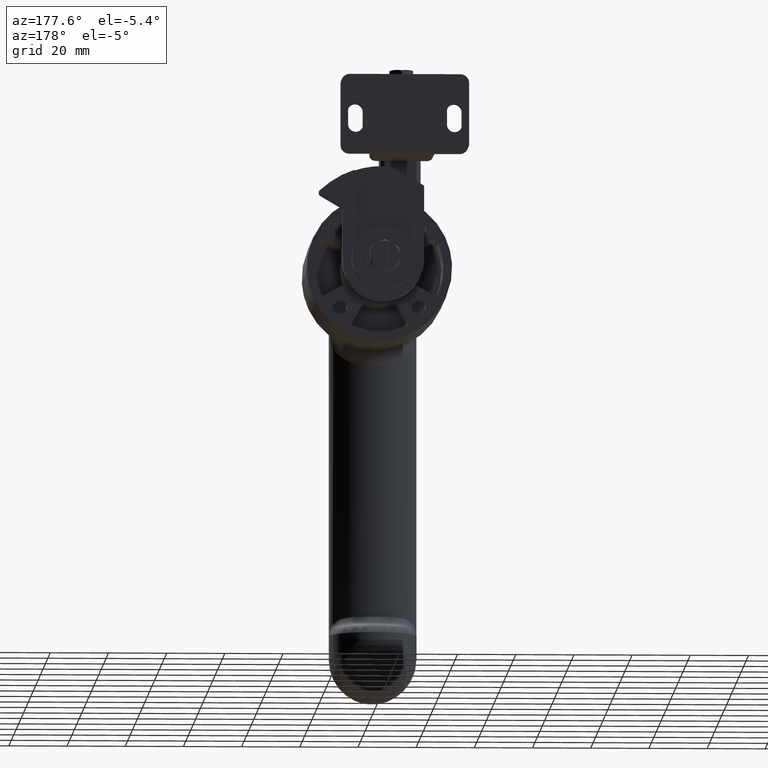
[diagram: clean part render]
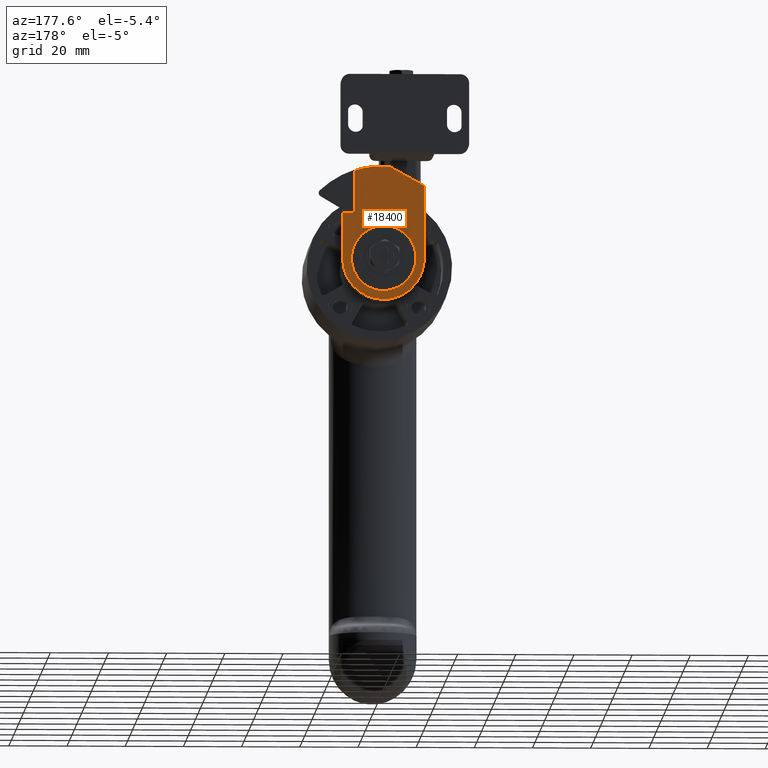
[diagram: same view with one face highlighted and labeled with its STEP entity id]
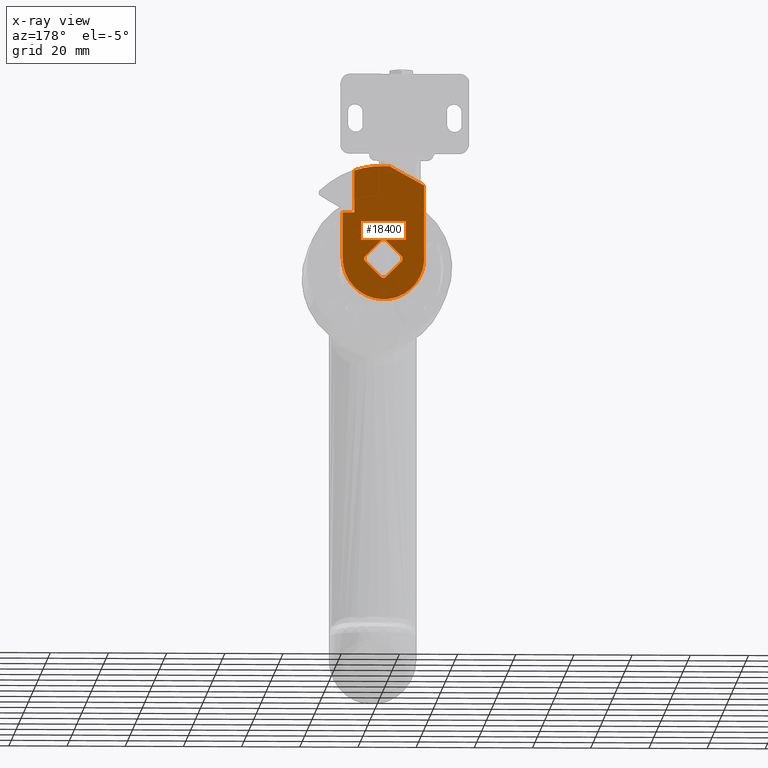
[diagram: x-ray of the same camera — body ghosted, the highlighted face saturated]
A machine part, auxiliary view. The second image highlights one B-rep face of the part: STEP entity #18400.
The next image is the same camera in x-ray: the body ghosted, the highlighted face saturated — about 0% of this face is hidden behind the body in this view.
In plain terms, the highlighted face is a freeform B-spline surface patch.
Its self-contained STEP definition (entity closure, byte-faithful):
#17334=CARTESIAN_POINT('',(-13.999999999982441,9.000000000000119,25.300000000086751));
#17335=VERTEX_POINT('',#17334);
#17341=CARTESIAN_POINT('',(-14.0,9.000000000000119,-2.598191E-011));
#17342=VERTEX_POINT('',#17341);
#17343=CARTESIAN_POINT('',(-13.999999999982441,9.000000000000119,25.300000000086751));
#17344=CARTESIAN_POINT('',(-14.0,9.000000000000119,-2.598191E-011));
#17345=QUASI_UNIFORM_CURVE('',1,(#17343,#17344),.UNSPECIFIED.,.F.,.U.);
#17346=EDGE_CURVE('',#17335,#17342,#17345,.T.);
#17368=CARTESIAN_POINT('',(-2.000000000209915,9.000000000000119,31.937438845303401));
#17369=VERTEX_POINT('',#17368);
#17375=CARTESIAN_POINT('',(-2.000000000209915,9.000000000000119,31.937438845303401));
#17376=CARTESIAN_POINT('',(-13.999999999982441,9.000000000000119,25.300000000086751));
#17377=QUASI_UNIFORM_CURVE('',1,(#17375,#17376),.UNSPECIFIED.,.F.,.U.);
#17378=EDGE_CURVE('',#17369,#17335,#17377,.T.);
#17480=CARTESIAN_POINT('',(10.000000000021419,9.000000000000119,30.397368307108199));
#17481=VERTEX_POINT('',#17480);
#17487=CARTESIAN_POINT('',(-2.000000000209921,9.000000000000119,31.937438845303380));
#17488=CARTESIAN_POINT('',(4.148238578822799,9.000000000000119,32.322456479901653));
#17489=CARTESIAN_POINT('',(10.000000000021389,9.000000000000119,30.397368307108170));
#17497=(BOUNDED_CURVE()B_SPLINE_CURVE(2,(#17487,#17488,#17489),.UNSPECIFIED.,.F.,.U.)CURVE()GEOMETRIC_REPRESENTATION_ITEM()QUASI_UNIFORM_CURVE()RATIONAL_B_SPLINE_CURVE((1.0,0.981969802514193,1.0))REPRESENTATION_ITEM(''));
#17498=EDGE_CURVE('',#17369,#17481,#17497,.T.);
#17807=CARTESIAN_POINT('',(6.575677091096340,9.000000000000119,0.566101398693485));
#17808=VERTEX_POINT('',#17807);
#17814=CARTESIAN_POINT('',(6.575677091094510,9.000000000000119,-0.566101398766254));
#17815=VERTEX_POINT('',#17814);
#17816=CARTESIAN_POINT('',(6.575677091096337,9.000000000000119,0.566101398693484));
#17817=CARTESIAN_POINT('',(6.624412877418935,9.000000000000119,-3.646480E-011));
#17818=CARTESIAN_POINT('',(6.575677091094544,9.000000000000119,-0.566101398766261));
#17826=(BOUNDED_CURVE()B_SPLINE_CURVE(2,(#17816,#17817,#17818),.UNSPECIFIED.,.F.,.U.)CURVE()GEOMETRIC_REPRESENTATION_ITEM()QUASI_UNIFORM_CURVE()RATIONAL_B_SPLINE_CURVE((1.0,0.996314710772021,1.0))REPRESENTATION_ITEM(''));
#17827=EDGE_CURVE('',#17808,#17815,#17826,.T.);
#17850=CARTESIAN_POINT('',(0.566101399067535,9.000000000000119,-6.575677091092260));
#17851=VERTEX_POINT('',#17850);
#17852=CARTESIAN_POINT('',(0.566101399067535,9.000000000000119,-6.575677091092260));
#17853=CARTESIAN_POINT('',(6.575677091094510,9.000000000000119,-0.566101398766254));
#17854=QUASI_UNIFORM_CURVE('',1,(#17852,#17853),.UNSPECIFIED.,.F.,.U.);
#17855=EDGE_CURVE('',#17851,#17815,#17854,.T.);
#17895=CARTESIAN_POINT('',(-0.566101398740173,9.000000000000119,-6.575677091120500));
#17896=VERTEX_POINT('',#17895);
#17897=CARTESIAN_POINT('',(0.566101399067535,9.000000000000119,-6.575677091092261));
#17898=CARTESIAN_POINT('',(1.648992E-010,9.000000000000119,-6.624412877459905));
#17899=CARTESIAN_POINT('',(-0.566101398740165,9.000000000000119,-6.575677091120427));
#17907=(BOUNDED_CURVE()B_SPLINE_CURVE(2,(#17897,#17898,#17899),.UNSPECIFIED.,.F.,.U.)CURVE()GEOMETRIC_REPRESENTATION_ITEM()QUASI_UNIFORM_CURVE()RATIONAL_B_SPLINE_CURVE((1.0,0.996314710769752,1.0))REPRESENTATION_ITEM(''));
#17908=EDGE_CURVE('',#17851,#17896,#17907,.T.);
#17931=CARTESIAN_POINT('',(-6.575677091096139,9.000000000000119,-0.566101398745434));
#17932=VERTEX_POINT('',#17931);
#17933=CARTESIAN_POINT('',(-6.575677091096139,9.000000000000119,-0.566101398745434));
#17934=CARTESIAN_POINT('',(-0.566101398740173,9.000000000000119,-6.575677091120500));
#17935=QUASI_UNIFORM_CURVE('',1,(#17933,#17934),.UNSPECIFIED.,.F.,.U.);
#17936=EDGE_CURVE('',#17932,#17896,#17935,.T.);
#17976=CARTESIAN_POINT('',(-6.575677091064520,9.000000000000119,0.566101399061946));
#17977=VERTEX_POINT('',#17976);
#17978=CARTESIAN_POINT('',(-6.575677091096138,9.000000000000119,-0.566101398745436));
#17979=CARTESIAN_POINT('',(-6.624412877433810,9.000000000000119,1.596133E-010));
#17980=CARTESIAN_POINT('',(-6.575677091064417,9.000000000000119,0.566101399061934));
#17988=(BOUNDED_CURVE()B_SPLINE_CURVE(2,(#17978,#17979,#17980),.UNSPECIFIED.,.F.,.U.)CURVE()GEOMETRIC_REPRESENTATION_ITEM()QUASI_UNIFORM_CURVE()RATIONAL_B_SPLINE_CURVE((1.0,0.996314710769754,1.0))REPRESENTATION_ITEM(''));
#17989=EDGE_CURVE('',#17932,#17977,#17988,.T.);
#18012=CARTESIAN_POINT('',(-0.566101399067335,9.000000000000119,6.575677091040300));
#18013=VERTEX_POINT('',#18012);
#18014=CARTESIAN_POINT('',(-0.566101399067335,9.000000000000119,6.575677091040300));
#18015=CARTESIAN_POINT('',(-6.575677091064520,9.000000000000119,0.566101399061946));
#18016=QUASI_UNIFORM_CURVE('',1,(#18014,#18015),.UNSPECIFIED.,.F.,.U.);
#18017=EDGE_CURVE('',#18013,#17977,#18016,.T.);
#18057=CARTESIAN_POINT('',(0.566101398740303,9.000000000000119,6.575677091068470));
#18058=VERTEX_POINT('',#18057);
#18059=CARTESIAN_POINT('',(-0.566101399067336,9.000000000000119,6.575677091040299));
#18060=CARTESIAN_POINT('',(-1.647282E-010,9.000000000000119,6.624412877407941));
#18061=CARTESIAN_POINT('',(0.566101398740302,9.000000000000119,6.575677091068471));
#18069=(BOUNDED_CURVE()B_SPLINE_CURVE(2,(#18059,#18060,#18061),.UNSPECIFIED.,.F.,.U.)CURVE()GEOMETRIC_REPRESENTATION_ITEM()QUASI_UNIFORM_CURVE()RATIONAL_B_SPLINE_CURVE((1.0,0.996314710769752,1.0))REPRESENTATION_ITEM(''));
#18070=EDGE_CURVE('',#18013,#18058,#18069,.T.);
#18091=CARTESIAN_POINT('',(6.575677091096340,9.000000000000119,0.566101398693485));
#18092=CARTESIAN_POINT('',(0.566101398740303,9.000000000000119,6.575677091068470));
#18093=QUASI_UNIFORM_CURVE('',1,(#18091,#18092),.UNSPECIFIED.,.F.,.U.);
#18094=EDGE_CURVE('',#17808,#18058,#18093,.T.);
#18114=CARTESIAN_POINT('',(14.000000000046020,9.000000000000119,15.896964971914050));
#18115=VERTEX_POINT('',#18114);
#18131=CARTESIAN_POINT('',(9.999999999979409,9.000000000000108,15.896964971914150));
#18132=VERTEX_POINT('',#18131);
#18133=CARTESIAN_POINT('',(9.999999999979409,9.000000000000108,15.896964971914150));
#18134=CARTESIAN_POINT('',(14.000000000046020,9.000000000000119,15.896964971914050));
#18135=QUASI_UNIFORM_CURVE('',1,(#18133,#18134),.UNSPECIFIED.,.F.,.U.);
#18136=EDGE_CURVE('',#18132,#18115,#18135,.T.);
#18282=CARTESIAN_POINT('',(9.999999999979409,9.000000000000108,15.896964971914150));
#18283=CARTESIAN_POINT('',(10.000000000021419,9.000000000000119,30.397368307108199));
#18284=QUASI_UNIFORM_CURVE('',1,(#18282,#18283),.UNSPECIFIED.,.F.,.U.);
#18285=EDGE_CURVE('',#18132,#17481,#18284,.T.);
#18348=CARTESIAN_POINT('',(15.398599945778880,9.000000000000108,34.297687702996207));
#18349=CARTESIAN_POINT('',(-15.398600696751391,9.000000000000108,34.297687702996207));
#18350=CARTESIAN_POINT('',(15.398599945778880,9.000000000000108,-16.297700563901628));
#18351=CARTESIAN_POINT('',(-15.398600696751391,9.000000000000108,-16.297700563901628));
#18352=B_SPLINE_SURFACE_WITH_KNOTS('',1,1,((#18348,#18350),(#18349,#18351)),.UNSPECIFIED.,.F.,.F.,.U.,(2,2),(2,2),(0.0,30.797200642530271),(0.0,50.595388266897842),.UNSPECIFIED.);
#18353=ORIENTED_EDGE('',*,*,#18285,.F.);
#18354=ORIENTED_EDGE('',*,*,#18136,.T.);
#18355=CARTESIAN_POINT('',(14.0,9.000000000000119,-2.620831E-011));
#18356=VERTEX_POINT('',#18355);
#18357=CARTESIAN_POINT('',(14.0,9.000000000000119,-2.620831E-011));
#18358=CARTESIAN_POINT('',(14.000000000046020,9.000000000000119,15.896964971914050));
#18359=QUASI_UNIFORM_CURVE('',1,(#18357,#18358),.UNSPECIFIED.,.F.,.U.);
#18360=EDGE_CURVE('',#18356,#18115,#18359,.T.);
#18361=ORIENTED_EDGE('',*,*,#18360,.F.);
#18362=CARTESIAN_POINT('',(14.0,9.000000000000119,-2.620831E-011));
#18363=CARTESIAN_POINT('',(14.000064033502110,9.000000000000114,-0.916269550255968));
#18364=CARTESIAN_POINT('',(13.802698380195840,9.000000000000132,-2.920685666355284));
#18365=CARTESIAN_POINT('',(13.003941899204920,9.000000000000107,-5.389234486429997));
#18366=CARTESIAN_POINT('',(11.759683129912270,9.000000000000137,-7.716941692546149));
#18367=CARTESIAN_POINT('',(10.107959586016880,9.000000000000151,-9.860806698645497));
#18368=CARTESIAN_POINT('',(8.056169867361541,9.000000000000094,-11.544629376726551));
#18369=CARTESIAN_POINT('',(5.852605804295361,9.000000000000030,-12.774889192438151));
#18370=CARTESIAN_POINT('',(3.916412403340157,9.000000000000174,-13.508169619364930));
#18371=CARTESIAN_POINT('',(1.381999232735699,9.000000000000112,-14.012381435470910));
#18372=CARTESIAN_POINT('',(-1.095306125246458,8.999999999999989,-14.042768158077330));
#18373=CARTESIAN_POINT('',(-3.752855053648884,9.000000000000229,-13.564770156194729));
#18374=CARTESIAN_POINT('',(-6.234137531243707,8.999999999999890,-12.642608756187730));
#18375=CARTESIAN_POINT('',(-8.431726058411456,9.000000000000433,-11.269724800309421));
#18376=CARTESIAN_POINT('',(-10.091065873974410,8.999999999999883,-9.765632642506301));
#18377=CARTESIAN_POINT('',(-11.347040253374781,9.000000000000306,-8.272909559575382));
#18378=CARTESIAN_POINT('',(-12.606891109701181,8.999999999999922,-6.283898415321391));
#18379=CARTESIAN_POINT('',(-13.703022455728000,9.000000000000402,-3.493193404930867));
#18380=CARTESIAN_POINT('',(-14.000317323477489,8.999999999999831,-1.202643860829530));
#18381=CARTESIAN_POINT('',(-14.0,9.000000000000119,-2.598191E-011));
#18382=B_SPLINE_CURVE_WITH_KNOTS('',3,(#18362,#18363,#18364,#18365,#18366,#18367,#18368,#18369,#18370,#18371,#18372,#18373,#18374,#18375,#18376,#18377,#18378,#18379,#18380,#18381),.UNSPECIFIED.,.F.,.U.,(4,1,1,1,1,1,1,1,1,1,1,1,1,1,1,1,1,4),(0.000000229103364,2.748850382038221,6.013171630246454,7.731267451404982,10.652032014437911,14.088212535860860,15.634494511190450,18.211617728809710,20.273290060105271,23.365660347483271,25.599131946710010,28.348076812966472,31.268842940526500,33.330548558233438,35.048635532711067,37.110359487960970,40.374713264464312,43.982573120683533),.UNSPECIFIED.);
#18383=EDGE_CURVE('',#18356,#17342,#18382,.T.);
#18384=ORIENTED_EDGE('',*,*,#18383,.T.);
#18385=ORIENTED_EDGE('',*,*,#17346,.F.);
#18386=ORIENTED_EDGE('',*,*,#17378,.F.);
#18387=ORIENTED_EDGE('',*,*,#17498,.T.);
#18388=EDGE_LOOP('',(#18353,#18354,#18361,#18384,#18385,#18386,#18387));
#18389=FACE_OUTER_BOUND('',#18388,.T.);
#18390=ORIENTED_EDGE('',*,*,#18094,.T.);
#18391=ORIENTED_EDGE('',*,*,#18070,.F.);
#18392=ORIENTED_EDGE('',*,*,#18017,.T.);
#18393=ORIENTED_EDGE('',*,*,#17989,.F.);
#18394=ORIENTED_EDGE('',*,*,#17936,.T.);
#18395=ORIENTED_EDGE('',*,*,#17908,.F.);
#18396=ORIENTED_EDGE('',*,*,#17855,.T.);
#18397=ORIENTED_EDGE('',*,*,#17827,.F.);
#18398=EDGE_LOOP('',(#18390,#18391,#18392,#18393,#18394,#18395,#18396,#18397));
#18399=FACE_BOUND('',#18398,.T.);
#18400=ADVANCED_FACE('',(#18389,#18399),#18352,.F.);